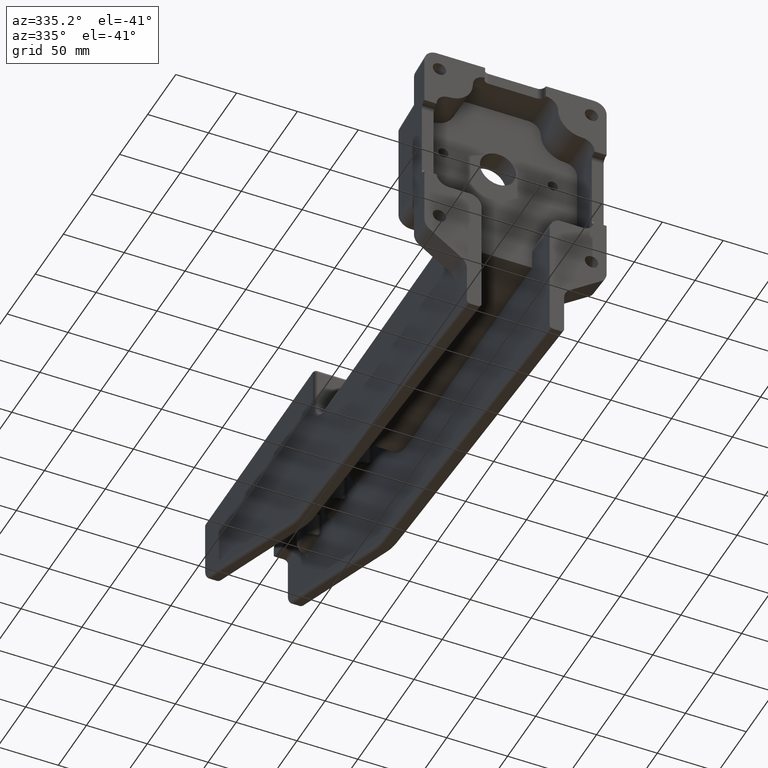
[diagram: clean part render]
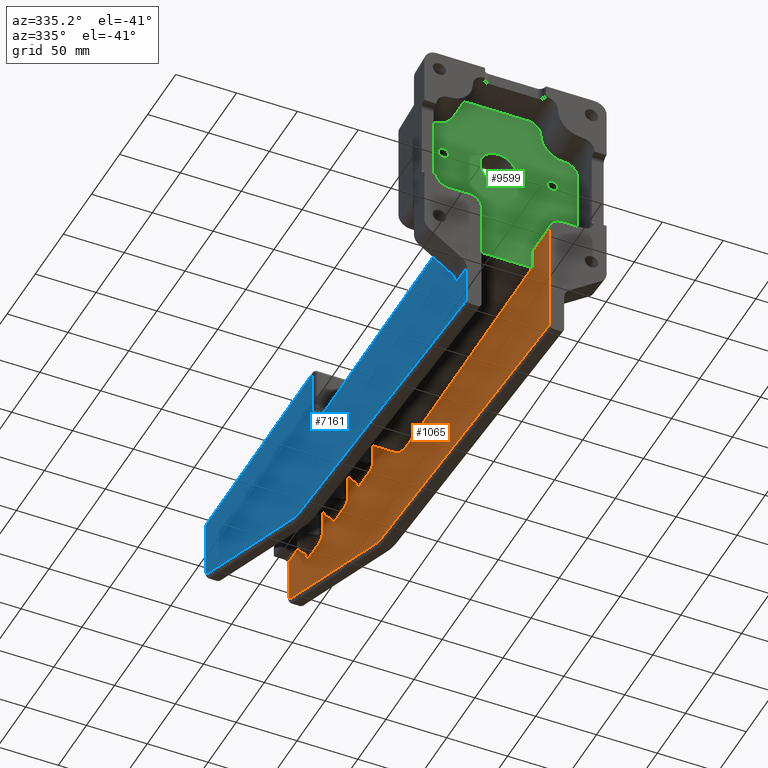
[diagram: same view with three faces highlighted in distinct colors, each labeled with its STEP entity id]
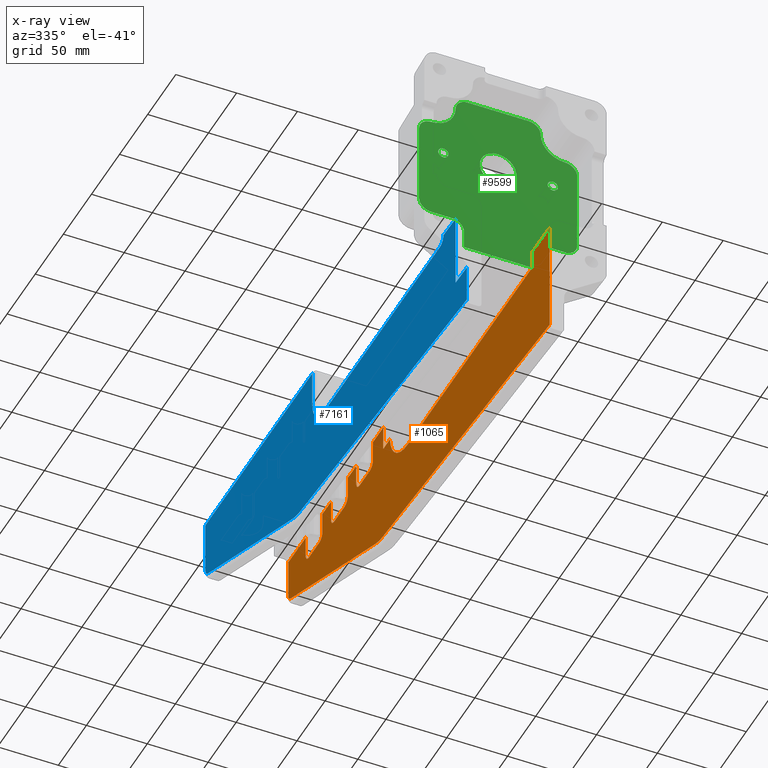
[diagram: x-ray of the same camera — body ghosted, the three highlighted faces saturated]
A machine part, auxiliary view with three faces highlighted in distinct colors.
The next image is the same camera in x-ray (body ghosted, the three faces saturated) — at least one of them is partly hidden behind the body in this view.
Their STEP definitions:

[orange] entity #1065 — the highlighted planar face has unit normal (1, -0, 0).
#9 = CARTESIAN_POINT ( 'NONE',  ( 28.00000000000000000, 407.5249758736495100, -123.1303834613186400 ) ) ;
#10 = CARTESIAN_POINT ( 'NONE',  ( 28.00000000000000000, 362.1339312526817500, -121.0000000000003300 ) ) ;
#19 = VERTEX_POINT ( 'NONE', #7629 ) ;
#58 = CARTESIAN_POINT ( 'NONE',  ( 27.99999999999999600, 436.5495418177793000, -122.9546759416864900 ) ) ;
#97 = CARTESIAN_POINT ( 'NONE',  ( 28.00000000000000700, 431.5669048386492400, -126.9624032809682200 ) ) ;
#181 = VECTOR ( 'NONE', #6090, 1000.000000000000000 ) ;
#210 = VECTOR ( 'NONE', #6205, 1000.000000000000000 ) ;
#361 = EDGE_CURVE ( 'NONE', #11051, #8357, #1987, .T. ) ;
#412 = CARTESIAN_POINT ( 'NONE',  ( 28.00000000000000400, 363.3888410190412500, -124.6774526948971800 ) ) ;
#467 = CARTESIAN_POINT ( 'NONE',  ( 27.99999999999999600, 345.6029637088292900, -124.6879051449751600 ) ) ;
#508 = DIRECTION ( 'NONE',  ( -0.0000000000000000000, 1.000000000000000000, 1.267645714563468100E-016 ) ) ;
#544 = LINE ( 'NONE', #1062, #210 ) ;
#616 = DIRECTION ( 'NONE',  ( -0.0000000000000000000, -1.000000000000000000, 0.0000000000000000000 ) ) ;
#644 = CARTESIAN_POINT ( 'NONE',  ( 28.00000000000000000, 362.1339312526817500, -254.6796809876007900 ) ) ;
#717 = CARTESIAN_POINT ( 'NONE',  ( 28.00000000000000000, 391.8660687473187100, -121.0000000000003300 ) ) ;
#722 = VERTEX_POINT ( 'NONE', #6212 ) ;
#752 = CARTESIAN_POINT ( 'NONE',  ( 28.00000000000000400, 322.4309083375914000, -126.9624486070113100 ) ) ;
#756 = CARTESIAN_POINT ( 'NONE',  ( 28.00000000000000400, 389.3039837575315100, -125.9019151088561200 ) ) ;
#764 = DIRECTION ( 'NONE',  ( -0.0000000000000000000, 1.000000000000000000, 1.267645714563468100E-016 ) ) ;
#766 = LINE ( 'NONE', #9374, #10064 ) ;
#799 = CARTESIAN_POINT ( 'NONE',  ( 27.99999999999999600, 317.3394414826761900, -122.5625958740601600 ) ) ;
#872 = ORIENTED_EDGE ( 'NONE', *, *, #936, .T. ) ;
#895 = EDGE_CURVE ( 'NONE', #11735, #9546, #3928, .T. ) ;
#936 = EDGE_CURVE ( 'NONE', #9244, #722, #10314, .T. ) ;
#1005 = CARTESIAN_POINT ( 'NONE',  ( 28.00000000000000400, 412.4309083375914000, -126.9624486070113100 ) ) ;
#1008 = VERTEX_POINT ( 'NONE', #4629 ) ;
#1050 = CARTESIAN_POINT ( 'NONE',  ( 27.99999999999999600, 407.3394414826760800, -122.5625958740601500 ) ) ;
#1062 = CARTESIAN_POINT ( 'NONE',  ( 28.00000000000000000, 2.999999999999891600, -254.6796809876006200 ) ) ;
#1065 = ADVANCED_FACE ( 'NONE', ( #11941 ), #1336, .F. ) ;
#1092 = CARTESIAN_POINT ( 'NONE',  ( 27.99999999999999600, 436.0490403141240600, -124.0351934641413900 ) ) ;
#1109 = VECTOR ( 'NONE', #8676, 1000.000000000000000 ) ;
#1140 = CARTESIAN_POINT ( 'NONE',  ( 28.00000000000000000, 430.7749643873923400, -127.0000000000003400 ) ) ;
#1271 = CARTESIAN_POINT ( 'NONE',  ( 28.00000000000000000, 313.8245421327282500, -206.5058954343522500 ) ) ;
#1336 = PLANE ( 'NONE',  #1828 ) ;
#1412 = ORIENTED_EDGE ( 'NONE', *, *, #3901, .T. ) ;
#1431 = LINE ( 'NONE', #11769, #1109 ) ;
#1445 = CARTESIAN_POINT ( 'NONE',  ( 28.00000000000000400, 362.7558233551270600, -123.6777179665031700 ) ) ;
#1474 = CARTESIAN_POINT ( 'NONE',  ( 28.00000000000000000, 407.1339312526816900, -254.6796809876007900 ) ) ;
#1500 = CARTESIAN_POINT ( 'NONE',  ( 28.00000000000000000, 344.9244947978711500, -125.4052512638314700 ) ) ;
#1577 = ORIENTED_EDGE ( 'NONE', *, *, #6207, .T. ) ;
#1586 = CARTESIAN_POINT ( 'NONE',  ( 28.00000000000000000, 362.1339312526817500, -103.0000000000003600 ) ) ;
#1687 = VECTOR ( 'NONE', #6343, 1000.000000000000000 ) ;
#1723 = VERTEX_POINT ( 'NONE', #9818 ) ;
#1745 = DIRECTION ( 'NONE',  ( 0.0000000000000000000, 0.0000000000000000000, 1.000000000000000000 ) ) ;
#1754 = VERTEX_POINT ( 'NONE', #2634 ) ;
#1780 = CARTESIAN_POINT ( 'NONE',  ( 27.99999999999999600, 321.2670021480045100, -126.6985865487692300 ) ) ;
#1784 = CARTESIAN_POINT ( 'NONE',  ( 28.00000000000000000, 295.2148058286123800, -163.3471452822536500 ) ) ;
#1785 = CARTESIAN_POINT ( 'NONE',  ( 28.00000000000000000, 388.4587794980754400, -126.4063189844957300 ) ) ;
#1827 = CARTESIAN_POINT ( 'NONE',  ( 28.00000000000000400, 317.1737683276953100, -121.7920262601177500 ) ) ;
#1828 = AXIS2_PLACEMENT_3D ( 'NONE', #5519, #12837, #6594 ) ;
#1987 = LINE ( 'NONE', #12337, #12775 ) ;
#2006 = VECTOR ( 'NONE', #8615, 1000.000000000000000 ) ;
#2035 = CARTESIAN_POINT ( 'NONE',  ( 28.00000000000000000, 430.7749643873923400, -127.0000000000003400 ) ) ;
#2037 = CARTESIAN_POINT ( 'NONE',  ( 27.99999999999999600, 411.2670021480043900, -126.6985865487692300 ) ) ;
#2047 = CARTESIAN_POINT ( 'NONE',  ( 28.00000000000000000, 461.0000000000005700, -135.4218985499278200 ) ) ;
#2083 = CARTESIAN_POINT ( 'NONE',  ( 28.00000000000000400, 407.1737683276952600, -121.7920262601177500 ) ) ;
#2088 = CARTESIAN_POINT ( 'NONE',  ( 28.00000000000000000, 436.8660687473187100, -121.0000000000003300 ) ) ;
#2113 = CIRCLE ( 'NONE', #3085, 6.999999999999340100 ) ;
#2129 = CARTESIAN_POINT ( 'NONE',  ( 27.99999999999999600, 435.3497443372186800, -124.9896554586480700 ) ) ;
#2155 = ORIENTED_EDGE ( 'NONE', *, *, #4265, .F. ) ;
#2223 = ORIENTED_EDGE ( 'NONE', *, *, #7642, .T. ) ;
#2324 = LINE ( 'NONE', #3379, #2006 ) ;
#2353 = CARTESIAN_POINT ( 'NONE',  ( 28.00000000000000000, 391.8660687473187100, -254.6796809876007900 ) ) ;
#2460 = ORIENTED_EDGE ( 'NONE', *, *, #5935, .T. ) ;
#2476 = CARTESIAN_POINT ( 'NONE',  ( 27.99999999999999600, 362.4564004489809600, -122.9420623813543900 ) ) ;
#2533 = CARTESIAN_POINT ( 'NONE',  ( 28.00000000000000400, 344.4641342646913200, -125.7863050611544800 ) ) ;
#2596 = ORIENTED_EDGE ( 'NONE', *, *, #9905, .T. ) ;
#2634 = CARTESIAN_POINT ( 'NONE',  ( 28.00000000000000000, 346.8660687473187100, -121.0000000000003300 ) ) ;
#2660 = VERTEX_POINT ( 'NONE', #4123 ) ;
#2718 = VECTOR ( 'NONE', #11503, 1000.000000000000000 ) ;
#2739 = LINE ( 'NONE', #4973, #13505 ) ;
#2743 = EDGE_CURVE ( 'NONE', #4345, #9685, #9784, .T. ) ;
#2775 = CARTESIAN_POINT ( 'NONE',  ( 28.00000000000000000, 391.6666574662322100, -122.5781505402899100 ) ) ;
#2787 = ORIENTED_EDGE ( 'NONE', *, *, #4327, .T. ) ;
#2816 = CARTESIAN_POINT ( 'NONE',  ( 27.99999999999999600, 320.1843046365270300, -126.2204954146788400 ) ) ;
#2818 = DIRECTION ( 'NONE',  ( 0.0000000000000000000, 3.543264972207947300E-015, -1.000000000000000000 ) ) ;
#2820 = CARTESIAN_POINT ( 'NONE',  ( 28.00000000000001100, 387.3382657998403100, -126.8145121143177400 ) ) ;
#2822 = ORIENTED_EDGE ( 'NONE', *, *, #12308, .T. ) ;
#2863 = CARTESIAN_POINT ( 'NONE',  ( 28.00000000000000000, 317.1339312526817500, -121.0000000000003300 ) ) ;
#3026 = AXIS2_PLACEMENT_3D ( 'NONE', #9696, #3421, #10728 ) ;
#3076 = CARTESIAN_POINT ( 'NONE',  ( 27.99999999999999600, 410.1843046365269200, -126.2204954146788400 ) ) ;
#3085 = AXIS2_PLACEMENT_3D ( 'NONE', #2047, #9365, #3089 ) ;
#3089 = DIRECTION ( 'NONE',  ( 0.0000000000000000000, 0.0000000000000000000, -1.000000000000000000 ) ) ;
#3127 = CARTESIAN_POINT ( 'NONE',  ( 28.00000000000000000, 407.1339312526816900, -121.0000000000003300 ) ) ;
#3178 = CARTESIAN_POINT ( 'NONE',  ( 28.00000000000000400, 434.7742418043503100, -125.5381967042411900 ) ) ;
#3278 = VECTOR ( 'NONE', #7745, 1000.000000000000000 ) ;
#3379 = CARTESIAN_POINT ( 'NONE',  ( 28.00000000000000000, 467.9999999999999400, -135.4218985499279600 ) ) ;
#3421 = DIRECTION ( 'NONE',  ( 1.000000000000000000, -0.0000000000000000000, 0.0000000000000000000 ) ) ;
#3489 = CARTESIAN_POINT ( 'NONE',  ( 28.00000000000000400, 366.6498217910640800, -126.8117551148432200 ) ) ;
#3503 = ORIENTED_EDGE ( 'NONE', *, *, #361, .T. ) ;
#3530 = ORIENTED_EDGE ( 'NONE', *, *, #2743, .T. ) ;
#3536 = CARTESIAN_POINT ( 'NONE',  ( 27.99999999999999600, 362.2908082401332300, -122.3711837116218700 ) ) ;
#3546 = CARTESIAN_POINT ( 'NONE',  ( 28.00000000000000000, 463.7716628538044000, -141.8497975087505600 ) ) ;
#3553 = CARTESIAN_POINT ( 'NONE',  ( 28.00000000000000000, 470.9999999999999400, -103.0000000000003400 ) ) ;
#3588 = CARTESIAN_POINT ( 'NONE',  ( 28.00000000000000700, 343.8086695552737000, -126.2241211813562500 ) ) ;
#3686 = VERTEX_POINT ( 'NONE', #10 ) ;
#3721 = CARTESIAN_POINT ( 'NONE',  ( 28.00000000000000000, 286.9374388453425100, -124.0000000000003300 ) ) ;
#3825 = CARTESIAN_POINT ( 'NONE',  ( 28.00000000000000700, 391.2421331540908200, -123.6815764115977000 ) ) ;
#3868 = CARTESIAN_POINT ( 'NONE',  ( 27.99999999999999600, 319.2102394850787200, -125.5375766358969800 ) ) ;
#3874 = CARTESIAN_POINT ( 'NONE',  ( 28.00000000000000000, 386.1744421391134700, -127.0000000000002800 ) ) ;
#3888 = EDGE_LOOP ( 'NONE', ( #4966, #10885, #5235, #8736, #9294, #5272, #2596, #2787, #3503, #5039, #872, #7046, #1412, #4299, #2223, #2155, #2822, #11404, #7439, #10287, #2460, #5614, #4400, #5748, #11942, #3530, #12501, #1577, #12615, #13268, #5503 ) ) ;
#3893 = VECTOR ( 'NONE', #9682, 1000.000000000000000 ) ;
#3901 = EDGE_CURVE ( 'NONE', #1754, #11344, #8994, .T. ) ;
#3928 = CIRCLE ( 'NONE', #3026, 32.00000000000000000 ) ;
#4088 = VERTEX_POINT ( 'NONE', #2035 ) ;
#4114 = CARTESIAN_POINT ( 'NONE',  ( 27.99999999999999600, 409.2102394850785500, -125.5375766358969800 ) ) ;
#4123 = CARTESIAN_POINT ( 'NONE',  ( 28.00000000000000000, 299.0990340419334100, -210.1863678546538100 ) ) ;
#4205 = CARTESIAN_POINT ( 'NONE',  ( 28.00000000000000400, 434.3039837575314600, -125.9019151088560900 ) ) ;
#4265 = EDGE_CURVE ( 'NONE', #9681, #3686, #6107, .T. ) ;
#4299 = ORIENTED_EDGE ( 'NONE', *, *, #10238, .T. ) ;
#4327 = EDGE_CURVE ( 'NONE', #10646, #11051, #10085, .T. ) ;
#4345 = VERTEX_POINT ( 'NONE', #12984 ) ;
#4380 = VERTEX_POINT ( 'NONE', #6845 ) ;
#4400 = ORIENTED_EDGE ( 'NONE', *, *, #7013, .T. ) ;
#4524 = CARTESIAN_POINT ( 'NONE',  ( 28.00000000000000700, 365.5365937178816600, -126.4037375684128600 ) ) ;
#4529 = CARTESIAN_POINT ( 'NONE',  ( 28.00000000000000000, 391.8660687473187100, -103.0000000000003600 ) ) ;
#4571 = VECTOR ( 'NONE', #11733, 1000.000000000000000 ) ;
#4572 = CARTESIAN_POINT ( 'NONE',  ( 28.00000000000000000, 362.1339312526817500, -121.3994094931030800 ) ) ;
#4583 = CARTESIAN_POINT ( 'NONE',  ( 28.00000000000000400, 346.8256709913962400, -121.7982202547254800 ) ) ;
#4590 = LINE ( 'NONE', #5408, #12612 ) ;
#4610 = CARTESIAN_POINT ( 'NONE',  ( 28.00000000000000000, 320.0417392568988900, -103.0000000000003700 ) ) ;
#4620 = CARTESIAN_POINT ( 'NONE',  ( 28.00000000000000400, 342.7185438296939400, -126.7036889691854600 ) ) ;
#4629 = CARTESIAN_POINT ( 'NONE',  ( 28.00000000000000000, 34.00000000000001400, -138.9999999999999400 ) ) ;
#4684 = CARTESIAN_POINT ( 'NONE',  ( 28.00000000000000000, 254.9999999999998900, -154.0000000000001100 ) ) ;
#4867 = CARTESIAN_POINT ( 'NONE',  ( 28.00000000000000400, 390.6029637088292900, -124.6879051449751800 ) ) ;
#4874 = EDGE_CURVE ( 'NONE', #11735, #7198, #766, .T. ) ;
#4903 = CARTESIAN_POINT ( 'NONE',  ( 28.00000000000000400, 318.3888410190412500, -124.6774526948971800 ) ) ;
#4960 = LINE ( 'NONE', #5193, #7800 ) ;
#4961 = CARTESIAN_POINT ( 'NONE',  ( 28.00000000000000000, 298.9582607431016800, -124.0000000000003300 ) ) ;
#4966 = ORIENTED_EDGE ( 'NONE', *, *, #8457, .F. ) ;
#4973 = CARTESIAN_POINT ( 'NONE',  ( 28.00000000000000000, 436.8660687473187100, -254.6796809876007900 ) ) ;
#5039 = ORIENTED_EDGE ( 'NONE', *, *, #11986, .F. ) ;
#5112 = CARTESIAN_POINT ( 'NONE',  ( 28.00000000000000000, 413.2250356126081100, -127.0000000000003400 ) ) ;
#5121 = B_SPLINE_CURVE_WITH_KNOTS ( 'NONE', 3,
 ( #717, #6952, #9068, #2775, #10098, #3825, #11151, #4867, #12189, #5929, #13221, #6999, #756, #8062, #1785, #9112, #2820, #10143, #3874, #11193 ),
 .UNSPECIFIED., .F., .F.,
 ( 4, 2, 2, 2, 2, 2, 2, 2, 2, 4 ),
 ( 0.0000000000000000000, 0.001194696799874165000, 0.002389393599748330100, 0.003584090399622495500, 0.004778787199496660100, 0.005376135599433774100, 0.005973483999370886300, 0.007168180799245207900, 0.008362877599119531200, 0.009557574398993852800 ),
 .UNSPECIFIED. ) ;
#5156 = CARTESIAN_POINT ( 'NONE',  ( 28.00000000000000400, 408.3888410190411900, -124.6774526948971800 ) ) ;
#5193 = CARTESIAN_POINT ( 'NONE',  ( 28.00000000000000000, 298.9582607431016800, -124.0000000000003300 ) ) ;
#5213 = CARTESIAN_POINT ( 'NONE',  ( 28.00000000000000000, 313.8245421327282000, -206.5058954343522800 ) ) ;
#5235 = ORIENTED_EDGE ( 'NONE', *, *, #12137, .T. ) ;
#5259 = CARTESIAN_POINT ( 'NONE',  ( 28.00000000000000000, 505.9537289224925900, -138.9999999999998900 ) ) ;
#5260 = CARTESIAN_POINT ( 'NONE',  ( 28.00000000000000000, 433.4587794980755600, -126.4063189844957300 ) ) ;
#5272 = ORIENTED_EDGE ( 'NONE', *, *, #11821, .F. ) ;
#5405 = CARTESIAN_POINT ( 'NONE',  ( 28.00000000000000000, 2.999999999999947200, -234.7409218971556600 ) ) ;
#5408 = CARTESIAN_POINT ( 'NONE',  ( 28.00000000000000000, 410.0417392568987800, -103.0000000000003600 ) ) ;
#5495 = LINE ( 'NONE', #5213, #2718 ) ;
#5503 = ORIENTED_EDGE ( 'NONE', *, *, #12394, .T. ) ;
#5519 = CARTESIAN_POINT ( 'NONE',  ( 28.00000000000000000, 505.9537289224925900, -254.6796809876007900 ) ) ;
#5582 = CARTESIAN_POINT ( 'NONE',  ( 28.00000000000000400, 364.5174458131567700, -125.7847794970688100 ) ) ;
#5614 = ORIENTED_EDGE ( 'NONE', *, *, #6838, .F. ) ;
#5616 = VECTOR ( 'NONE', #616, 1000.000000000000000 ) ;
#5637 = CARTESIAN_POINT ( 'NONE',  ( 27.99999999999999600, 346.5495418177793600, -122.9546759416864900 ) ) ;
#5685 = CARTESIAN_POINT ( 'NONE',  ( 28.00000000000000700, 341.5669048386492400, -126.9624032809682200 ) ) ;
#5727 = DIRECTION ( 'NONE',  ( -0.0000000000000000000, -0.0000000000000000000, -1.000000000000000000 ) ) ;
#5748 = ORIENTED_EDGE ( 'NONE', *, *, #9397, .F. ) ;
#5809 = EDGE_CURVE ( 'NONE', #19, #1008, #9687, .T. ) ;
#5853 = EDGE_CURVE ( 'NONE', #13022, #12509, #4590, .T. ) ;
#5926 = CARTESIAN_POINT ( 'NONE',  ( 28.00000000000000000, 323.2250356126081100, -127.0000000000003400 ) ) ;
#5929 = CARTESIAN_POINT ( 'NONE',  ( 28.00000000000000700, 389.9244947978710900, -125.4052512638314700 ) ) ;
#5935 = EDGE_CURVE ( 'NONE', #12509, #10251, #8871, .T. ) ;
#5970 = CARTESIAN_POINT ( 'NONE',  ( 28.00000000000000000, 317.7558233551270600, -123.6777179665031400 ) ) ;
#6056 = DIRECTION ( 'NONE',  ( 0.0000000000000000000, 0.0000000000000000000, 1.000000000000000000 ) ) ;
#6071 = EDGE_CURVE ( 'NONE', #7422, #2660, #9487, .T. ) ;
#6090 = DIRECTION ( 'NONE',  ( 0.0000000000000000000, 1.000000000000000000, -0.0000000000000000000 ) ) ;
#6107 = B_SPLINE_CURVE_WITH_KNOTS ( 'NONE', 3,
 ( #7671, #6606, #9753, #3489, #10799, #4524, #11856, #5582, #12893, #6650, #412, #7718, #1445, #8760, #2476, #9802, #3536, #10841, #4572, #11906 ),
 .UNSPECIFIED., .F., .F.,
 ( 4, 2, 2, 2, 2, 2, 2, 2, 2, 4 ),
 ( 0.0000000000000000000, 0.001189806061302153700, 0.002379612122604307500, 0.003569418183906461700, 0.004759224245208615000, 0.005949030306510768300, 0.007138836367812923300, 0.007733739398464051600, 0.008328642429115179800, 0.009518448490417361800 ),
 .UNSPECIFIED. ) ;
#6109 = LINE ( 'NONE', #7007, #11675 ) ;
#6205 = DIRECTION ( 'NONE',  ( 0.0000000000000000000, -2.775557561562851900E-016, -1.000000000000000000 ) ) ;
#6207 = EDGE_CURVE ( 'NONE', #4380, #6554, #2113, .T. ) ;
#6212 = CARTESIAN_POINT ( 'NONE',  ( 28.00000000000000000, 340.7749643873923400, -127.0000000000003400 ) ) ;
#6245 = CARTESIAN_POINT ( 'NONE',  ( 28.00000000000000000, 407.7558233551270100, -123.6777179665031700 ) ) ;
#6295 = CARTESIAN_POINT ( 'NONE',  ( 28.00000000000000000, 436.6666574662321000, -122.5781505402899500 ) ) ;
#6343 = DIRECTION ( 'NONE',  ( -0.0000000000000000000, 1.000000000000000000, 1.176083712526650200E-016 ) ) ;
#6346 = CARTESIAN_POINT ( 'NONE',  ( 28.00000000000000000, 432.3382657998401400, -126.8145121143177100 ) ) ;
#6383 = EDGE_CURVE ( 'NONE', #1723, #13022, #6695, .T. ) ;
#6543 = EDGE_CURVE ( 'NONE', #1754, #722, #10326, .T. ) ;
#6554 = VERTEX_POINT ( 'NONE', #3546 ) ;
#6594 = DIRECTION ( 'NONE',  ( 0.0000000000000000000, 0.0000000000000000000, -1.000000000000000000 ) ) ;
#6606 = CARTESIAN_POINT ( 'NONE',  ( 28.00000000000000000, 367.8258078932773300, -127.0000000000003400 ) ) ;
#6650 = CARTESIAN_POINT ( 'NONE',  ( 28.00000000000000400, 363.6470446425841500, -124.9858556960199000 ) ) ;
#6695 = LINE ( 'NONE', #2353, #3893 ) ;
#6700 = VERTEX_POINT ( 'NONE', #10046 ) ;
#6709 = CARTESIAN_POINT ( 'NONE',  ( 27.99999999999999600, 346.0490403141241100, -124.0351934641413900 ) ) ;
#6759 = CARTESIAN_POINT ( 'NONE',  ( 28.00000000000000000, 340.7749643873923400, -127.0000000000003400 ) ) ;
#6765 = CARTESIAN_POINT ( 'NONE',  ( 28.00000000000000000, 298.9582607431016800, -103.0000000000003700 ) ) ;
#6788 = EDGE_CURVE ( 'NONE', #10201, #4345, #2739, .T. ) ;
#6838 = EDGE_CURVE ( 'NONE', #6700, #10251, #12416, .T. ) ;
#6845 = CARTESIAN_POINT ( 'NONE',  ( 28.00000000000000000, 467.9999999999999400, -135.4218985499280200 ) ) ;
#6876 = CARTESIAN_POINT ( 'NONE',  ( 28.00000000000000000, 436.8660687473187100, -121.0000000000003300 ) ) ;
#6952 = CARTESIAN_POINT ( 'NONE',  ( 28.00000000000000000, 391.8660687473187600, -121.3997325164591700 ) ) ;
#6971 = CARTESIAN_POINT ( 'NONE',  ( 28.00000000000000000, 34.00000000000001400, -154.0000000000001100 ) ) ;
#6999 = CARTESIAN_POINT ( 'NONE',  ( 28.00000000000000400, 389.4641342646911500, -125.7863050611544800 ) ) ;
#7007 = CARTESIAN_POINT ( 'NONE',  ( 28.00000000000000000, 365.0417392568988900, -103.0000000000003600 ) ) ;
#7009 = VECTOR ( 'NONE', #10858, 1000.000000000000000 ) ;
#7013 = EDGE_CURVE ( 'NONE', #6700, #4088, #1431, .T. ) ;
#7041 = CARTESIAN_POINT ( 'NONE',  ( 28.00000000000000400, 317.4564004489810700, -122.9420623813544200 ) ) ;
#7046 = ORIENTED_EDGE ( 'NONE', *, *, #6543, .F. ) ;
#7114 = CARTESIAN_POINT ( 'NONE',  ( 28.00000000000000000, 388.9582607431016200, -127.0000000000003400 ) ) ;
#7198 = VERTEX_POINT ( 'NONE', #6971 ) ;
#7305 = CARTESIAN_POINT ( 'NONE',  ( 28.00000000000000400, 407.4564004489810700, -122.9420623813543900 ) ) ;
#7356 = CARTESIAN_POINT ( 'NONE',  ( 28.00000000000000000, 436.2421331540906000, -123.6815764115976600 ) ) ;
#7373 = VERTEX_POINT ( 'NONE', #5405 ) ;
#7404 = CARTESIAN_POINT ( 'NONE',  ( 28.00000000000000400, 431.1744421391135800, -127.0000000000003100 ) ) ;
#7422 = VERTEX_POINT ( 'NONE', #1271 ) ;
#7439 = ORIENTED_EDGE ( 'NONE', *, *, #6383, .T. ) ;
#7629 = CARTESIAN_POINT ( 'NONE',  ( 28.00000000000000000, 2.999999999999923600, -138.9999999999999400 ) ) ;
#7642 = EDGE_CURVE ( 'NONE', #11192, #3686, #10679, .T. ) ;
#7671 = CARTESIAN_POINT ( 'NONE',  ( 28.00000000000000000, 368.2250356126081100, -127.0000000000003400 ) ) ;
#7718 = CARTESIAN_POINT ( 'NONE',  ( 28.00000000000000000, 362.9440968115519600, -124.0235594965810700 ) ) ;
#7745 = DIRECTION ( 'NONE',  ( -0.0000000000000000000, -0.0000000000000000000, -1.000000000000000000 ) ) ;
#7772 = CARTESIAN_POINT ( 'NONE',  ( 27.99999999999999600, 345.3497443372187400, -124.9896554586480700 ) ) ;
#7786 = CARTESIAN_POINT ( 'NONE',  ( 28.00000000000000000, -0.2479294604249560100, -235.0102623889957600 ) ) ;
#7800 = VECTOR ( 'NONE', #11489, 1000.000000000000000 ) ;
#7921 = CARTESIAN_POINT ( 'NONE',  ( 28.00000000000000000, 505.9537289224925900, -124.0000000000003300 ) ) ;
#8054 = CARTESIAN_POINT ( 'NONE',  ( 28.00000000000000000, 323.2250356126081100, -127.0000000000003400 ) ) ;
#8057 = CARTESIAN_POINT ( 'NONE',  ( 28.00000000000000000, 321.6498217910640800, -126.8117551148432200 ) ) ;
#8062 = CARTESIAN_POINT ( 'NONE',  ( 27.99999999999999300, 388.8086695552734100, -126.2241211813562000 ) ) ;
#8091 = CARTESIAN_POINT ( 'NONE',  ( 28.00000000000000000, 317.2908082401332300, -122.3711837116218800 ) ) ;
#8151 = EDGE_CURVE ( 'NONE', #9685, #4380, #2324, .T. ) ;
#8309 = CARTESIAN_POINT ( 'NONE',  ( 28.00000000000000400, 411.6498217910642000, -126.8117551148432200 ) ) ;
#8310 = EDGE_CURVE ( 'NONE', #1723, #8438, #5121, .T. ) ;
#8320 = B_SPLINE_CURVE_WITH_KNOTS ( 'NONE', 3,
 ( #2088, #10439, #12545, #6295, #58, #7356, #1092, #8407, #2129, #9442, #3178, #10480, #4205, #11545, #5260, #12590, #6346, #97, #7404, #1140 ),
 .UNSPECIFIED., .F., .F.,
 ( 4, 2, 2, 2, 2, 2, 2, 2, 2, 4 ),
 ( 0.0000000000000000000, 0.001194696799874330700, 0.002389393599748661400, 0.003584090399622992100, 0.004778787199497322800, 0.005376135599434458400, 0.005973483999371594100, 0.007168180799245678900, 0.008362877599119763700, 0.009557574398993847600 ),
 .UNSPECIFIED. ) ;
#8356 = CARTESIAN_POINT ( 'NONE',  ( 28.00000000000000000, 407.2908082401331200, -122.3711837116219000 ) ) ;
#8357 = VERTEX_POINT ( 'NONE', #10229 ) ;
#8407 = CARTESIAN_POINT ( 'NONE',  ( 27.99999999999999600, 435.6029637088292400, -124.6879051449751600 ) ) ;
#8438 = VERTEX_POINT ( 'NONE', #10364 ) ;
#8457 = EDGE_CURVE ( 'NONE', #19, #7373, #544, .T. ) ;
#8510 = LINE ( 'NONE', #7114, #181 ) ;
#8615 = DIRECTION ( 'NONE',  ( 0.0000000000000000000, 0.0000000000000000000, -1.000000000000000000 ) ) ;
#8644 = CARTESIAN_POINT ( 'NONE',  ( 28.00000000000000000, 34.00000000000001400, -154.0000000000001100 ) ) ;
#8670 = LINE ( 'NONE', #7786, #11107 ) ;
#8676 = DIRECTION ( 'NONE',  ( 0.0000000000000000000, 1.000000000000000000, -0.0000000000000000000 ) ) ;
#8704 = DIRECTION ( 'NONE',  ( 0.0000000000000000000, 1.000000000000000000, -0.0000000000000000000 ) ) ;
#8736 = ORIENTED_EDGE ( 'NONE', *, *, #4874, .F. ) ;
#8760 = CARTESIAN_POINT ( 'NONE',  ( 28.00000000000000000, 362.5249758736495100, -123.1303834613186300 ) ) ;
#8773 = CARTESIAN_POINT ( 'NONE',  ( 28.00000000000000000, 346.8660687473187100, -121.0000000000003300 ) ) ;
#8820 = CARTESIAN_POINT ( 'NONE',  ( 28.00000000000000400, 344.7742418043504200, -125.5381967042411900 ) ) ;
#8834 = DIRECTION ( 'NONE',  ( 0.0000000000000000000, -0.9965792036680887200, -0.08264315347491474300 ) ) ;
#8871 = LINE ( 'NONE', #1474, #3278 ) ;
#8994 = LINE ( 'NONE', #9070, #11754 ) ;
#9035 = CARTESIAN_POINT ( 'NONE',  ( 28.00000000000000000, 407.1339312526816900, -121.0000000000003300 ) ) ;
#9068 = CARTESIAN_POINT ( 'NONE',  ( 28.00000000000000400, 391.8256709913961800, -121.7982202547254800 ) ) ;
#9070 = CARTESIAN_POINT ( 'NONE',  ( 28.00000000000000000, 346.8660687473187100, -254.6796809876007900 ) ) ;
#9109 = CARTESIAN_POINT ( 'NONE',  ( 27.99999999999999600, 320.5365937178816000, -126.4037375684128100 ) ) ;
#9111 = DIRECTION ( 'NONE',  ( -1.000000000000000000, 0.0000000000000000000, -0.0000000000000000000 ) ) ;
#9112 = CARTESIAN_POINT ( 'NONE',  ( 28.00000000000000000, 387.7185438296940000, -126.7036889691854600 ) ) ;
#9152 = CARTESIAN_POINT ( 'NONE',  ( 28.00000000000000000, 317.1339312526816900, -121.3994094931030600 ) ) ;
#9244 = VERTEX_POINT ( 'NONE', #8054 ) ;
#9294 = ORIENTED_EDGE ( 'NONE', *, *, #895, .T. ) ;
#9356 = CARTESIAN_POINT ( 'NONE',  ( 28.00000000000000400, 410.5365937178816000, -126.4037375684128600 ) ) ;
#9365 = DIRECTION ( 'NONE',  ( -1.000000000000000000, 0.0000000000000000000, -0.0000000000000000000 ) ) ;
#9374 = CARTESIAN_POINT ( 'NONE',  ( 28.00000000000000000, 286.9999999999998900, -154.0000000000001100 ) ) ;
#9391 = CARTESIAN_POINT ( 'NONE',  ( 28.00000000000000400, 407.1339312526817500, -121.3994094931030900 ) ) ;
#9397 = EDGE_CURVE ( 'NONE', #10201, #4088, #8320, .T. ) ;
#9402 = EDGE_CURVE ( 'NONE', #6554, #7422, #5495, .T. ) ;
#9442 = CARTESIAN_POINT ( 'NONE',  ( 28.00000000000000000, 434.9244947978711500, -125.4052512638314700 ) ) ;
#9487 = CIRCLE ( 'NONE', #13394, 46.99999999999998600 ) ;
#9546 = VERTEX_POINT ( 'NONE', #3721 ) ;
#9650 = VERTEX_POINT ( 'NONE', #4961 ) ;
#9681 = VERTEX_POINT ( 'NONE', #11266 ) ;
#9682 = DIRECTION ( 'NONE',  ( 0.0000000000000000000, 0.0000000000000000000, 1.000000000000000000 ) ) ;
#9685 = VERTEX_POINT ( 'NONE', #12304 ) ;
#9687 = LINE ( 'NONE', #5259, #1687 ) ;
#9696 = CARTESIAN_POINT ( 'NONE',  ( 28.00000000000000000, 254.9999999999998900, -122.0000000000001100 ) ) ;
#9753 = CARTESIAN_POINT ( 'NONE',  ( 28.00000000000000400, 367.4309083375914600, -126.9624486070113100 ) ) ;
#9784 = LINE ( 'NONE', #3553, #7009 ) ;
#9802 = CARTESIAN_POINT ( 'NONE',  ( 28.00000000000000000, 362.3394414826761400, -122.5625958740601800 ) ) ;
#9812 = CARTESIAN_POINT ( 'NONE',  ( 27.99999999999999600, 346.8660687473187100, -121.3997325164591700 ) ) ;
#9818 = CARTESIAN_POINT ( 'NONE',  ( 28.00000000000000000, 391.8660687473187100, -121.0000000000003300 ) ) ;
#9857 = CARTESIAN_POINT ( 'NONE',  ( 28.00000000000000400, 344.3039837575315100, -125.9019151088560900 ) ) ;
#9905 = EDGE_CURVE ( 'NONE', #9650, #10646, #4960, .T. ) ;
#10046 = CARTESIAN_POINT ( 'NONE',  ( 28.00000000000000000, 413.2250356126081100, -127.0000000000003400 ) ) ;
#10064 = VECTOR ( 'NONE', #11426, 1000.000000000000000 ) ;
#10085 = LINE ( 'NONE', #4610, #12526 ) ;
#10098 = CARTESIAN_POINT ( 'NONE',  ( 28.00000000000000400, 391.5495418177794100, -122.9546759416865200 ) ) ;
#10139 = CARTESIAN_POINT ( 'NONE',  ( 27.99999999999999600, 319.5174458131567700, -125.7847794970687800 ) ) ;
#10143 = CARTESIAN_POINT ( 'NONE',  ( 27.99999999999999600, 386.5669048386490100, -126.9624032809682200 ) ) ;
#10195 = CARTESIAN_POINT ( 'NONE',  ( 28.00000000000000000, 346.8660687473187100, -103.0000000000003600 ) ) ;
#10201 = VERTEX_POINT ( 'NONE', #6876 ) ;
#10229 = CARTESIAN_POINT ( 'NONE',  ( 28.00000000000000000, 317.1339312526817500, -121.0000000000003300 ) ) ;
#10238 = EDGE_CURVE ( 'NONE', #11344, #11192, #6109, .T. ) ;
#10251 = VERTEX_POINT ( 'NONE', #9035 ) ;
#10287 = ORIENTED_EDGE ( 'NONE', *, *, #5853, .T. ) ;
#10314 = LINE ( 'NONE', #10723, #13079 ) ;
#10326 = B_SPLINE_CURVE_WITH_KNOTS ( 'NONE', 3,
 ( #8773, #9812, #4583, #11915, #5637, #12946, #6709, #467, #7772, #1500, #8820, #2533, #9857, #3588, #10895, #4620, #11961, #5685, #12994, #6759 ),
 .UNSPECIFIED., .F., .F.,
 ( 4, 2, 2, 2, 2, 2, 2, 2, 2, 4 ),
 ( 0.0000000000000000000, 0.001194696799874331300, 0.002389393599748662700, 0.003584090399622993800, 0.004778787199497325400, 0.005376135599434461000, 0.005973483999371597500, 0.007168180799245682300, 0.008362877599119767100, 0.009557574398993852800 ),
 .UNSPECIFIED. ) ;
#10364 = CARTESIAN_POINT ( 'NONE',  ( 28.00000000000000000, 385.7749643873923400, -127.0000000000003400 ) ) ;
#10391 = CARTESIAN_POINT ( 'NONE',  ( 28.00000000000000400, 409.5174458131567700, -125.7847794970687800 ) ) ;
#10439 = CARTESIAN_POINT ( 'NONE',  ( 27.99999999999999600, 436.8660687473187100, -121.3997325164591700 ) ) ;
#10480 = CARTESIAN_POINT ( 'NONE',  ( 28.00000000000000400, 434.4641342646912700, -125.7863050611544800 ) ) ;
#10646 = VERTEX_POINT ( 'NONE', #6765 ) ;
#10679 = LINE ( 'NONE', #644, #13131 ) ;
#10706 = CARTESIAN_POINT ( 'NONE',  ( 28.00000000000000000, 317.1339312526817500, -103.0000000000003700 ) ) ;
#10723 = CARTESIAN_POINT ( 'NONE',  ( 28.00000000000000000, 343.9582607431016800, -127.0000000000003400 ) ) ;
#10728 = DIRECTION ( 'NONE',  ( 0.0000000000000000000, 0.0000000000000000000, -1.000000000000000000 ) ) ;
#10799 = CARTESIAN_POINT ( 'NONE',  ( 28.00000000000000000, 366.2670021480045600, -126.6985865487692600 ) ) ;
#10841 = CARTESIAN_POINT ( 'NONE',  ( 28.00000000000000700, 362.1737683276952600, -121.7920262601177500 ) ) ;
#10858 = DIRECTION ( 'NONE',  ( -0.0000000000000000000, 1.000000000000000000, 1.267645714563468100E-016 ) ) ;
#10885 = ORIENTED_EDGE ( 'NONE', *, *, #5809, .T. ) ;
#10895 = CARTESIAN_POINT ( 'NONE',  ( 28.00000000000000000, 343.4587794980756700, -126.4063189844957300 ) ) ;
#11051 = VERTEX_POINT ( 'NONE', #10706 ) ;
#11107 = VECTOR ( 'NONE', #8834, 999.9999999999998900 ) ;
#11151 = CARTESIAN_POINT ( 'NONE',  ( 28.00000000000000000, 391.0490403141241100, -124.0351934641414100 ) ) ;
#11188 = CARTESIAN_POINT ( 'NONE',  ( 27.99999999999999300, 318.6470446425840900, -124.9858556960198300 ) ) ;
#11192 = VERTEX_POINT ( 'NONE', #1586 ) ;
#11193 = CARTESIAN_POINT ( 'NONE',  ( 28.00000000000000000, 385.7749643873923400, -127.0000000000003400 ) ) ;
#11266 = CARTESIAN_POINT ( 'NONE',  ( 28.00000000000000000, 368.2250356126081100, -127.0000000000003400 ) ) ;
#11344 = VERTEX_POINT ( 'NONE', #10195 ) ;
#11404 = ORIENTED_EDGE ( 'NONE', *, *, #8310, .F. ) ;
#11409 = CARTESIAN_POINT ( 'NONE',  ( 28.00000000000000400, 412.8258078932772700, -127.0000000000003700 ) ) ;
#11426 = DIRECTION ( 'NONE',  ( 0.0000000000000000000, -1.000000000000000000, 0.0000000000000000000 ) ) ;
#11451 = CARTESIAN_POINT ( 'NONE',  ( 28.00000000000000000, 408.6470446425840900, -124.9858556960198700 ) ) ;
#11489 = DIRECTION ( 'NONE',  ( 0.0000000000000000000, 0.0000000000000000000, 1.000000000000000000 ) ) ;
#11503 = DIRECTION ( 'NONE',  ( 0.0000000000000000000, -0.9182712798318848300, -0.3959518362577854600 ) ) ;
#11517 = LINE ( 'NONE', #7921, #5616 ) ;
#11545 = CARTESIAN_POINT ( 'NONE',  ( 28.00000000000000700, 433.8086695552735800, -126.2241211813562500 ) ) ;
#11675 = VECTOR ( 'NONE', #764, 1000.000000000000000 ) ;
#11733 = DIRECTION ( 'NONE',  ( -0.0000000000000000000, 1.176083712526650200E-016, -1.000000000000000000 ) ) ;
#11735 = VERTEX_POINT ( 'NONE', #4684 ) ;
#11754 = VECTOR ( 'NONE', #1745, 1000.000000000000000 ) ;
#11769 = CARTESIAN_POINT ( 'NONE',  ( 28.00000000000000000, 433.9582607431016200, -127.0000000000003400 ) ) ;
#11821 = EDGE_CURVE ( 'NONE', #9650, #9546, #11517, .T. ) ;
#11856 = CARTESIAN_POINT ( 'NONE',  ( 28.00000000000000000, 365.1843046365270300, -126.2204954146788700 ) ) ;
#11906 = CARTESIAN_POINT ( 'NONE',  ( 28.00000000000000000, 362.1339312526817500, -121.0000000000003300 ) ) ;
#11915 = CARTESIAN_POINT ( 'NONE',  ( 28.00000000000000000, 346.6666574662322100, -122.5781505402899500 ) ) ;
#11941 = FACE_OUTER_BOUND ( 'NONE', #3888, .T. ) ;
#11942 = ORIENTED_EDGE ( 'NONE', *, *, #6788, .T. ) ;
#11961 = CARTESIAN_POINT ( 'NONE',  ( 28.00000000000000000, 342.3382657998402000, -126.8145121143177100 ) ) ;
#11986 = EDGE_CURVE ( 'NONE', #9244, #8357, #12503, .T. ) ;
#12137 = EDGE_CURVE ( 'NONE', #1008, #7198, #12918, .T. ) ;
#12189 = CARTESIAN_POINT ( 'NONE',  ( 28.00000000000000400, 390.3497443372189100, -124.9896554586481200 ) ) ;
#12235 = CARTESIAN_POINT ( 'NONE',  ( 27.99999999999999600, 317.9440968115519000, -124.0235594965810700 ) ) ;
#12269 = CARTESIAN_POINT ( 'NONE',  ( 28.00000000000000000, 407.1339312526816900, -103.0000000000003600 ) ) ;
#12304 = CARTESIAN_POINT ( 'NONE',  ( 28.00000000000000000, 467.9999999999999400, -103.0000000000003400 ) ) ;
#12308 = EDGE_CURVE ( 'NONE', #9681, #8438, #8510, .T. ) ;
#12337 = CARTESIAN_POINT ( 'NONE',  ( 28.00000000000000000, 317.1339312526817500, -254.6796809876007900 ) ) ;
#12394 = EDGE_CURVE ( 'NONE', #2660, #7373, #8670, .T. ) ;
#12416 = B_SPLINE_CURVE_WITH_KNOTS ( 'NONE', 3,
 ( #5112, #11409, #1005, #8309, #2037, #9356, #3076, #10391, #4114, #11451, #5156, #12493, #6245, #9, #7305, #1050, #8356, #2083, #9391, #3127 ),
 .UNSPECIFIED., .F., .F.,
 ( 4, 2, 2, 2, 2, 2, 2, 2, 2, 4 ),
 ( 0.0000000000000000000, 0.001189806061302180600, 0.002379612122604361300, 0.003569418183906541900, 0.004759224245208722500, 0.005949030306510902700, 0.007138836367813083800, 0.007733739398464154800, 0.008328642429115226700, 0.009518448490417360000 ),
 .UNSPECIFIED. ) ;
#12493 = CARTESIAN_POINT ( 'NONE',  ( 28.00000000000000000, 407.9440968115518400, -124.0235594965811000 ) ) ;
#12501 = ORIENTED_EDGE ( 'NONE', *, *, #8151, .T. ) ;
#12503 = B_SPLINE_CURVE_WITH_KNOTS ( 'NONE', 3,
 ( #5926, #13216, #752, #8057, #1780, #9109, #2816, #10139, #3868, #11188, #4903, #12235, #5970, #13262, #7041, #799, #8091, #1827, #9152, #2863 ),
 .UNSPECIFIED., .F., .F.,
 ( 4, 2, 2, 2, 2, 2, 2, 2, 2, 4 ),
 ( 0.0000000000000000000, 0.001189806061302161800, 0.002379612122604323500, 0.003569418183906485500, 0.004759224245208647100, 0.005949030306510809000, 0.007138836367812971000, 0.007733739398464070700, 0.008328642429115171200, 0.009518448490417361800 ),
 .UNSPECIFIED. ) ;
#12509 = VERTEX_POINT ( 'NONE', #12269 ) ;
#12526 = VECTOR ( 'NONE', #508, 1000.000000000000000 ) ;
#12545 = CARTESIAN_POINT ( 'NONE',  ( 28.00000000000000400, 436.8256709913961200, -121.7982202547254800 ) ) ;
#12590 = CARTESIAN_POINT ( 'NONE',  ( 28.00000000000000400, 432.7185438296938900, -126.7036889691854600 ) ) ;
#12612 = VECTOR ( 'NONE', #12725, 1000.000000000000000 ) ;
#12615 = ORIENTED_EDGE ( 'NONE', *, *, #9402, .T. ) ;
#12725 = DIRECTION ( 'NONE',  ( -0.0000000000000000000, 1.000000000000000000, 1.267645714563468100E-016 ) ) ;
#12775 = VECTOR ( 'NONE', #13367, 1000.000000000000000 ) ;
#12837 = DIRECTION ( 'NONE',  ( 1.000000000000000000, -0.0000000000000000000, 0.0000000000000000000 ) ) ;
#12893 = CARTESIAN_POINT ( 'NONE',  ( 27.99999999999999600, 364.2102394850787200, -125.5375766358969800 ) ) ;
#12918 = LINE ( 'NONE', #8644, #4571 ) ;
#12946 = CARTESIAN_POINT ( 'NONE',  ( 28.00000000000000000, 346.2421331540907100, -123.6815764115976600 ) ) ;
#12984 = CARTESIAN_POINT ( 'NONE',  ( 28.00000000000000000, 436.8660687473187100, -103.0000000000003400 ) ) ;
#12994 = CARTESIAN_POINT ( 'NONE',  ( 28.00000000000000400, 341.1744421391136900, -127.0000000000003100 ) ) ;
#13022 = VERTEX_POINT ( 'NONE', #4529 ) ;
#13079 = VECTOR ( 'NONE', #8704, 1000.000000000000000 ) ;
#13131 = VECTOR ( 'NONE', #5727, 1000.000000000000000 ) ;
#13216 = CARTESIAN_POINT ( 'NONE',  ( 28.00000000000000000, 322.8258078932772700, -127.0000000000003400 ) ) ;
#13221 = CARTESIAN_POINT ( 'NONE',  ( 28.00000000000000400, 389.7742418043503700, -125.5381967042411900 ) ) ;
#13262 = CARTESIAN_POINT ( 'NONE',  ( 27.99999999999999600, 317.5249758736494000, -123.1303834613186300 ) ) ;
#13268 = ORIENTED_EDGE ( 'NONE', *, *, #6071, .T. ) ;
#13367 = DIRECTION ( 'NONE',  ( -0.0000000000000000000, -0.0000000000000000000, -1.000000000000000000 ) ) ;
#13394 = AXIS2_PLACEMENT_3D ( 'NONE', #1784, #9111, #2818 ) ;
#13505 = VECTOR ( 'NONE', #6056, 1000.000000000000000 ) ;

[blue] entity #7161 — the highlighted planar face has unit normal (1, 0, 0).
#24 = VERTEX_POINT ( 'NONE', #8675 ) ;
#312 = VECTOR ( 'NONE', #10135, 1000.000000000000000 ) ;
#411 = CIRCLE ( 'NONE', #10502, 6.000000000000005300 ) ;
#436 = ORIENTED_EDGE ( 'NONE', *, *, #2685, .T. ) ;
#507 = AXIS2_PLACEMENT_3D ( 'NONE', #11122, #4840, #12163 ) ;
#683 = EDGE_CURVE ( 'NONE', #1767, #11046, #4074, .T. ) ;
#699 = VECTOR ( 'NONE', #12643, 1000.000000000000000 ) ;
#945 = LINE ( 'NONE', #12527, #8955 ) ;
#960 = CARTESIAN_POINT ( 'NONE',  ( -40.00000000000003600, -0.2479294604249560100, -235.0102623889957600 ) ) ;
#1042 = LINE ( 'NONE', #11935, #9054 ) ;
#1159 = ORIENTED_EDGE ( 'NONE', *, *, #5764, .T. ) ;
#1199 = CARTESIAN_POINT ( 'NONE',  ( -40.00000000000003600, 50.99999999999997900, -139.0000000000100000 ) ) ;
#1289 = CIRCLE ( 'NONE', #3935, 22.99999999999999300 ) ;
#1413 = EDGE_CURVE ( 'NONE', #11046, #4827, #5557, .T. ) ;
#1430 = ORIENTED_EDGE ( 'NONE', *, *, #4652, .T. ) ;
#1502 = CARTESIAN_POINT ( 'NONE',  ( -40.00000000000003600, 255.0000000000000000, -145.0000000000001100 ) ) ;
#1763 = ORIENTED_EDGE ( 'NONE', *, *, #1413, .T. ) ;
#1767 = VERTEX_POINT ( 'NONE', #12053 ) ;
#1865 = CARTESIAN_POINT ( 'NONE',  ( -40.00000000000003600, 277.9999999999998900, -91.00000000000019900 ) ) ;
#1907 = VERTEX_POINT ( 'NONE', #6507 ) ;
#2054 = CARTESIAN_POINT ( 'NONE',  ( -40.00000000000003600, 295.2148058286123800, -163.3471452822536500 ) ) ;
#2085 = DIRECTION ( 'NONE',  ( -1.000000000000000000, -0.0000000000000000000, -0.0000000000000000000 ) ) ;
#2127 = DIRECTION ( 'NONE',  ( -0.0000000000000000000, 0.9990804530648748100, 0.04287479800167332700 ) ) ;
#2230 = DIRECTION ( 'NONE',  ( 0.0000000000000000000, 0.0000000000000000000, -1.000000000000000000 ) ) ;
#2581 = LINE ( 'NONE', #4970, #5344 ) ;
#2613 = CARTESIAN_POINT ( 'NONE',  ( -40.00000000000003600, 48.09949452124742200, -138.0704372201207400 ) ) ;
#2685 = EDGE_CURVE ( 'NONE', #8633, #7988, #1289, .T. ) ;
#2779 = VECTOR ( 'NONE', #9310, 999.9999999999998900 ) ;
#2868 = EDGE_CURVE ( 'NONE', #7988, #7231, #11400, .T. ) ;
#2966 = CARTESIAN_POINT ( 'NONE',  ( -40.00000000000003600, 2.999999999999947200, -234.7409218971556600 ) ) ;
#3101 = DIRECTION ( 'NONE',  ( 0.0000000000000000000, 7.086529944415894700E-015, -1.000000000000000000 ) ) ;
#3146 = EDGE_CURVE ( 'NONE', #7841, #8433, #1042, .T. ) ;
#3398 = CARTESIAN_POINT ( 'NONE',  ( -40.00000000000003600, 299.0990340419334100, -210.1863678546538100 ) ) ;
#3481 = ORIENTED_EDGE ( 'NONE', *, *, #8573, .T. ) ;
#3715 = AXIS2_PLACEMENT_3D ( 'NONE', #8359, #2085, #9393 ) ;
#3935 = AXIS2_PLACEMENT_3D ( 'NONE', #5509, #12825, #6580 ) ;
#4001 = EDGE_CURVE ( 'NONE', #24, #8633, #2581, .T. ) ;
#4074 = CIRCLE ( 'NONE', #5654, 46.99999999999998600 ) ;
#4078 = CARTESIAN_POINT ( 'NONE',  ( -40.00000000000003600, 22.99999999999994000, -202.1666416922227000 ) ) ;
#4105 = LINE ( 'NONE', #2613, #9701 ) ;
#4156 = LINE ( 'NONE', #5053, #6644 ) ;
#4430 = VECTOR ( 'NONE', #2127, 1000.000000000000100 ) ;
#4652 = EDGE_CURVE ( 'NONE', #11855, #1767, #945, .T. ) ;
#4699 = EDGE_CURVE ( 'NONE', #7231, #1907, #8622, .T. ) ;
#4809 = ORIENTED_EDGE ( 'NONE', *, *, #7310, .T. ) ;
#4827 = VERTEX_POINT ( 'NONE', #2966 ) ;
#4840 = DIRECTION ( 'NONE',  ( 1.000000000000000000, 0.0000000000000000000, 0.0000000000000000000 ) ) ;
#4876 = EDGE_CURVE ( 'NONE', #1907, #6186, #6300, .T. ) ;
#4970 = CARTESIAN_POINT ( 'NONE',  ( -40.00000000000003600, 255.0000000000000000, -145.0000000000001400 ) ) ;
#5053 = CARTESIAN_POINT ( 'NONE',  ( -40.00000000000003600, 2.999999999999947200, -237.9999999999998600 ) ) ;
#5183 = CARTESIAN_POINT ( 'NONE',  ( -40.00000000000003600, 467.9999999999999400, -135.4218985499278200 ) ) ;
#5205 = EDGE_CURVE ( 'NONE', #24, #7418, #411, .T. ) ;
#5241 = CARTESIAN_POINT ( 'NONE',  ( -40.00000000000003600, 471.0000000000001700, -91.00000000000008500 ) ) ;
#5344 = VECTOR ( 'NONE', #11272, 1000.000000000000000 ) ;
#5509 = CARTESIAN_POINT ( 'NONE',  ( -40.00000000000003600, 255.0000000000000000, -122.0000000000001100 ) ) ;
#5557 = LINE ( 'NONE', #960, #2779 ) ;
#5654 = AXIS2_PLACEMENT_3D ( 'NONE', #2054, #9372, #3101 ) ;
#5729 = CARTESIAN_POINT ( 'NONE',  ( -40.00000000000003600, 2.999999999999956900, -203.0249268857753600 ) ) ;
#5764 = EDGE_CURVE ( 'NONE', #9499, #8433, #10015, .T. ) ;
#5900 = CARTESIAN_POINT ( 'NONE',  ( -40.00000000000003600, 277.9999999999999400, -122.0000000000001000 ) ) ;
#5958 = VECTOR ( 'NONE', #6265, 1000.000000000000000 ) ;
#6186 = VERTEX_POINT ( 'NONE', #9280 ) ;
#6265 = DIRECTION ( 'NONE',  ( 0.0000000000000000000, -0.0000000000000000000, -1.000000000000000000 ) ) ;
#6279 = DIRECTION ( 'NONE',  ( 0.0000000000000000000, -0.9182712798318848300, -0.3959518362577854600 ) ) ;
#6300 = LINE ( 'NONE', #5183, #5958 ) ;
#6329 = DIRECTION ( 'NONE',  ( -0.0000000000000000000, 1.000000000000000000, 5.664403186863041500E-016 ) ) ;
#6507 = CARTESIAN_POINT ( 'NONE',  ( -40.00000000000003600, 467.9999999999999400, -91.00000000000008500 ) ) ;
#6580 = DIRECTION ( 'NONE',  ( 0.0000000000000000000, 0.0000000000000000000, -1.000000000000000000 ) ) ;
#6644 = VECTOR ( 'NONE', #7113, 1000.000000000000000 ) ;
#7110 = CARTESIAN_POINT ( 'NONE',  ( -40.00000000000003600, 22.99999999999995700, -138.9481337352266100 ) ) ;
#7113 = DIRECTION ( 'NONE',  ( 0.0000000000000000000, -2.775557561562851900E-016, -1.000000000000000000 ) ) ;
#7161 = ADVANCED_FACE ( 'NONE', ( #9118 ), #11027, .F. ) ;
#7231 = VERTEX_POINT ( 'NONE', #1865 ) ;
#7310 = EDGE_CURVE ( 'NONE', #6186, #11855, #12665, .T. ) ;
#7418 = VERTEX_POINT ( 'NONE', #9628 ) ;
#7841 = VERTEX_POINT ( 'NONE', #7110 ) ;
#7945 = ORIENTED_EDGE ( 'NONE', *, *, #3146, .F. ) ;
#7967 = CARTESIAN_POINT ( 'NONE',  ( -40.00000000000003600, 463.7716628538045100, -141.8497975087505000 ) ) ;
#7988 = VERTEX_POINT ( 'NONE', #5900 ) ;
#8359 = CARTESIAN_POINT ( 'NONE',  ( -40.00000000000003600, 461.0000000000005700, -135.4218985499278200 ) ) ;
#8406 = CARTESIAN_POINT ( 'NONE',  ( -40.00000000000003600, 23.22075936041417800, -202.1571679677036000 ) ) ;
#8433 = VERTEX_POINT ( 'NONE', #4078 ) ;
#8508 = DIRECTION ( 'NONE',  ( -1.000000000000000000, -0.0000000000000000000, -0.0000000000000000000 ) ) ;
#8513 = ORIENTED_EDGE ( 'NONE', *, *, #2868, .T. ) ;
#8573 = EDGE_CURVE ( 'NONE', #8630, #7418, #11461, .T. ) ;
#8622 = LINE ( 'NONE', #5241, #11054 ) ;
#8630 = VERTEX_POINT ( 'NONE', #11917 ) ;
#8633 = VERTEX_POINT ( 'NONE', #1502 ) ;
#8675 = CARTESIAN_POINT ( 'NONE',  ( -40.00000000000003600, 50.99999999999997900, -144.9999999999999100 ) ) ;
#8823 = ORIENTED_EDGE ( 'NONE', *, *, #5205, .F. ) ;
#8955 = VECTOR ( 'NONE', #6279, 1000.000000000000000 ) ;
#9054 = VECTOR ( 'NONE', #10873, 1000.000000000000000 ) ;
#9100 = CARTESIAN_POINT ( 'NONE',  ( -40.00000000000003600, 277.9999999999998900, -88.00000000000032700 ) ) ;
#9118 = FACE_OUTER_BOUND ( 'NONE', #12251, .T. ) ;
#9280 = CARTESIAN_POINT ( 'NONE',  ( -40.00000000000003600, 467.9999999999999400, -135.4218985499281000 ) ) ;
#9310 = DIRECTION ( 'NONE',  ( 0.0000000000000000000, -0.9965792036680887200, -0.08264315347491474300 ) ) ;
#9372 = DIRECTION ( 'NONE',  ( -1.000000000000000000, -0.0000000000000000000, -0.0000000000000000000 ) ) ;
#9393 = DIRECTION ( 'NONE',  ( 0.0000000000000000000, -7.930164461609009100E-015, -1.000000000000000000 ) ) ;
#9499 = VERTEX_POINT ( 'NONE', #5729 ) ;
#9628 = CARTESIAN_POINT ( 'NONE',  ( -40.00000000000003600, 44.99999999999998600, -139.0000000000100000 ) ) ;
#9701 = VECTOR ( 'NONE', #12796, 1000.000000000000000 ) ;
#9801 = EDGE_CURVE ( 'NONE', #9499, #4827, #4156, .T. ) ;
#9839 = ORIENTED_EDGE ( 'NONE', *, *, #4699, .T. ) ;
#10015 = LINE ( 'NONE', #8406, #4430 ) ;
#10135 = DIRECTION ( 'NONE',  ( 0.0000000000000000000, -3.265361837132821100E-015, 1.000000000000000000 ) ) ;
#10502 = AXIS2_PLACEMENT_3D ( 'NONE', #1199, #8508, #2230 ) ;
#10775 = ORIENTED_EDGE ( 'NONE', *, *, #13366, .T. ) ;
#10871 = ORIENTED_EDGE ( 'NONE', *, *, #683, .T. ) ;
#10873 = DIRECTION ( 'NONE',  ( 0.0000000000000000000, -2.775557561562851900E-016, -1.000000000000000000 ) ) ;
#11027 = PLANE ( 'NONE',  #507 ) ;
#11046 = VERTEX_POINT ( 'NONE', #3398 ) ;
#11054 = VECTOR ( 'NONE', #6329, 1000.000000000000000 ) ;
#11122 = CARTESIAN_POINT ( 'NONE',  ( -40.00000000000003600, 471.0000000000001700, -238.0000000000000000 ) ) ;
#11272 = DIRECTION ( 'NONE',  ( 0.0000000000000000000, 1.000000000000000000, -1.072679250845561900E-015 ) ) ;
#11400 = LINE ( 'NONE', #9100, #312 ) ;
#11461 = LINE ( 'NONE', #12550, #699 ) ;
#11670 = ORIENTED_EDGE ( 'NONE', *, *, #9801, .F. ) ;
#11855 = VERTEX_POINT ( 'NONE', #7967 ) ;
#11859 = ORIENTED_EDGE ( 'NONE', *, *, #4876, .T. ) ;
#11917 = CARTESIAN_POINT ( 'NONE',  ( -40.00000000000003600, 44.99999999999998600, -138.1788224920865100 ) ) ;
#11935 = CARTESIAN_POINT ( 'NONE',  ( -40.00000000000003600, 22.99999999999993600, -214.3105170035964600 ) ) ;
#12053 = CARTESIAN_POINT ( 'NONE',  ( -40.00000000000003600, 313.8245421327282500, -206.5058954343522300 ) ) ;
#12163 = DIRECTION ( 'NONE',  ( 0.0000000000000000000, 0.0000000000000000000, -1.000000000000000000 ) ) ;
#12251 = EDGE_LOOP ( 'NONE', ( #11670, #1159, #7945, #10775, #3481, #8823, #12433, #436, #8513, #9839, #11859, #4809, #1430, #10871, #1763 ) ) ;
#12433 = ORIENTED_EDGE ( 'NONE', *, *, #4001, .T. ) ;
#12527 = CARTESIAN_POINT ( 'NONE',  ( -40.00000000000003600, 313.8245421327282000, -206.5058954343522300 ) ) ;
#12550 = CARTESIAN_POINT ( 'NONE',  ( -40.00000000000003600, 44.99999999999998600, -238.0000000000000000 ) ) ;
#12643 = DIRECTION ( 'NONE',  ( 0.0000000000000000000, 0.0000000000000000000, -1.000000000000000000 ) ) ;
#12665 = CIRCLE ( 'NONE', #3715, 6.999999999999340100 ) ;
#12796 = DIRECTION ( 'NONE',  ( -0.0000000000000000000, 0.9993891554123456300, 0.03494733243322684100 ) ) ;
#12825 = DIRECTION ( 'NONE',  ( 1.000000000000000000, 0.0000000000000000000, 0.0000000000000000000 ) ) ;
#13366 = EDGE_CURVE ( 'NONE', #7841, #8630, #4105, .T. ) ;

[green] entity #9599 — the highlighted planar face has unit normal (0, -1, -0).
#2 = EDGE_LOOP ( 'NONE', ( #2682, #11694 ) ) ;
#22 = EDGE_CURVE ( 'NONE', #10612, #7440, #9211, .T. ) ;
#40 = AXIS2_PLACEMENT_3D ( 'NONE', #9145, #2859, #10175 ) ;
#44 = ORIENTED_EDGE ( 'NONE', *, *, #22, .T. ) ;
#119 = VERTEX_POINT ( 'NONE', #5784 ) ;
#120 = DIRECTION ( 'NONE',  ( 0.0000000000000000000, -1.000000000000000000, -1.176083712526650200E-016 ) ) ;
#123 = LINE ( 'NONE', #3938, #8794 ) ;
#177 = CARTESIAN_POINT ( 'NONE',  ( 55.00000000000006400, 34.00000000000001400, -118.9999999999999000 ) ) ;
#277 = EDGE_CURVE ( 'NONE', #7198, #5626, #8224, .T. ) ;
#396 = AXIS2_PLACEMENT_3D ( 'NONE', #6370, #120, #7427 ) ;
#622 = FACE_BOUND ( 'NONE', #2, .T. ) ;
#625 = ORIENTED_EDGE ( 'NONE', *, *, #4436, .T. ) ;
#678 = VERTEX_POINT ( 'NONE', #1877 ) ;
#705 = CARTESIAN_POINT ( 'NONE',  ( -54.99999999999999300, 34.00000000000001400, -128.9999999999998900 ) ) ;
#736 = VERTEX_POINT ( 'NONE', #10492 ) ;
#757 = ORIENTED_EDGE ( 'NONE', *, *, #1874, .T. ) ;
#790 = CARTESIAN_POINT ( 'NONE',  ( -54.99999999999999300, 34.00000000000001400, -128.9999999999998900 ) ) ;
#974 = CARTESIAN_POINT ( 'NONE',  ( 38.00000000000000700, 34.00000000000001400, -138.9999999999999400 ) ) ;
#1008 = VERTEX_POINT ( 'NONE', #4629 ) ;
#1072 = AXIS2_PLACEMENT_3D ( 'NONE', #9038, #2740, #10067 ) ;
#1139 = CARTESIAN_POINT ( 'NONE',  ( 34.99999999999995000, 34.00000000000000000, -19.99999999999990100 ) ) ;
#1216 = DIRECTION ( 'NONE',  ( 0.0000000000000000000, 0.0000000000000000000, -1.000000000000000000 ) ) ;
#1300 = EDGE_CURVE ( 'NONE', #7510, #9375, #11455, .T. ) ;
#1564 = VERTEX_POINT ( 'NONE', #6379 ) ;
#1743 = DIRECTION ( 'NONE',  ( 0.0000000000000000000, -1.000000000000000000, -1.176083712526650200E-016 ) ) ;
#1770 = CARTESIAN_POINT ( 'NONE',  ( -54.99999999999971600, 34.00000000000000000, -19.99999999999990400 ) ) ;
#1774 = DIRECTION ( 'NONE',  ( 0.0000000000000000000, -1.000000000000000000, -1.176083712526650200E-016 ) ) ;
#1874 = EDGE_CURVE ( 'NONE', #7440, #9771, #2603, .T. ) ;
#1877 = CARTESIAN_POINT ( 'NONE',  ( 45.00000000000000000, 34.00000000000000700, -62.74999999999992900 ) ) ;
#2001 = DIRECTION ( 'NONE',  ( 0.0000000000000000000, 0.0000000000000000000, -1.000000000000000000 ) ) ;
#2345 = EDGE_CURVE ( 'NONE', #12975, #11521, #10764, .T. ) ;
#2385 = DIRECTION ( 'NONE',  ( 1.000000000000000000, 5.602705292762865100E-032, -2.523234146875354500E-016 ) ) ;
#2390 = CARTESIAN_POINT ( 'NONE',  ( -45.00000000000000000, 34.00000000000000700, -71.24999999999991500 ) ) ;
#2469 = AXIS2_PLACEMENT_3D ( 'NONE', #11443, #5147, #12484 ) ;
#2519 = CARTESIAN_POINT ( 'NONE',  ( 45.00000000000000000, 34.00000000000000700, -66.99999999999991500 ) ) ;
#2555 = CIRCLE ( 'NONE', #1072, 4.249999999999990200 ) ;
#2603 = CIRCLE ( 'NONE', #9342, 10.00000000000002300 ) ;
#2611 = EDGE_CURVE ( 'NONE', #1008, #10612, #9458, .T. ) ;
#2622 = CARTESIAN_POINT ( 'NONE',  ( 54.99999999999993600, 34.00000000000000000, -19.99999999999990400 ) ) ;
#2643 = VECTOR ( 'NONE', #3931, 1000.000000000000000 ) ;
#2682 = ORIENTED_EDGE ( 'NONE', *, *, #6652, .F. ) ;
#2720 = DIRECTION ( 'NONE',  ( -1.000000000000000000, -0.0000000000000000000, -0.0000000000000000000 ) ) ;
#2740 = DIRECTION ( 'NONE',  ( 0.0000000000000000000, -1.000000000000000000, -1.176083712526650200E-016 ) ) ;
#2796 = DIRECTION ( 'NONE',  ( 0.0000000000000000000, 1.176083712526650200E-016, -1.000000000000000000 ) ) ;
#2859 = DIRECTION ( 'NONE',  ( -0.0000000000000000000, 1.000000000000000000, 1.176083712526650200E-016 ) ) ;
#3003 = EDGE_CURVE ( 'NONE', #5899, #119, #9073, .T. ) ;
#3027 = ORIENTED_EDGE ( 'NONE', *, *, #3712, .T. ) ;
#3031 = FACE_OUTER_BOUND ( 'NONE', #4653, .T. ) ;
#3073 = CARTESIAN_POINT ( 'NONE',  ( -54.99999999999971600, 34.00000000000000000, -19.99999999999990400 ) ) ;
#3105 = AXIS2_PLACEMENT_3D ( 'NONE', #10744, #4471, #11807 ) ;
#3106 = VERTEX_POINT ( 'NONE', #3476 ) ;
#3155 = LINE ( 'NONE', #12873, #5600 ) ;
#3308 = DIRECTION ( 'NONE',  ( 0.0000000000000000000, -1.000000000000000000, -1.176083712526650200E-016 ) ) ;
#3326 = CARTESIAN_POINT ( 'NONE',  ( 54.99999999999999300, 34.00000000000000700, -39.99999999999997200 ) ) ;
#3361 = FACE_BOUND ( 'NONE', #9007, .T. ) ;
#3443 = CARTESIAN_POINT ( 'NONE',  ( 65.00000000000005700, 34.00000000000000700, -49.99999999999997900 ) ) ;
#3476 = CARTESIAN_POINT ( 'NONE',  ( 45.00000000000000000, 34.00000000000000700, -71.24999999999991500 ) ) ;
#3581 = DIRECTION ( 'NONE',  ( 0.0000000000000000000, 0.0000000000000000000, -1.000000000000000000 ) ) ;
#3596 = CARTESIAN_POINT ( 'NONE',  ( 38.00000000000000700, 34.00000000000001400, -128.9999999999999100 ) ) ;
#3677 = DIRECTION ( 'NONE',  ( 0.0000000000000000000, 0.0000000000000000000, -1.000000000000000000 ) ) ;
#3712 = EDGE_CURVE ( 'NONE', #1564, #6619, #9970, .T. ) ;
#3766 = VERTEX_POINT ( 'NONE', #7591 ) ;
#3891 = AXIS2_PLACEMENT_3D ( 'NONE', #3073, #10386, #4104 ) ;
#3931 = DIRECTION ( 'NONE',  ( -1.000000000000000000, 0.0000000000000000000, 0.0000000000000000000 ) ) ;
#3938 = CARTESIAN_POINT ( 'NONE',  ( -65.00000000000000000, 34.00000000000000700, -49.99999999999997900 ) ) ;
#3974 = CARTESIAN_POINT ( 'NONE',  ( 0.0000000000000000000, 34.00000000000000700, -66.99999999999991500 ) ) ;
#4059 = CARTESIAN_POINT ( 'NONE',  ( -54.99999999999999300, 34.00000000000001400, -128.9999999999998900 ) ) ;
#4104 = DIRECTION ( 'NONE',  ( 0.0000000000000000000, 0.0000000000000000000, -1.000000000000000000 ) ) ;
#4120 = CARTESIAN_POINT ( 'NONE',  ( 24.99999999999996800, 34.00000000000000000, -9.999999999999895200 ) ) ;
#4182 = AXIS2_PLACEMENT_3D ( 'NONE', #8017, #1743, #9065 ) ;
#4224 = ORIENTED_EDGE ( 'NONE', *, *, #9520, .T. ) ;
#4242 = EDGE_CURVE ( 'NONE', #9771, #12975, #8636, .T. ) ;
#4360 = CIRCLE ( 'NONE', #4654, 4.249999999999990200 ) ;
#4436 = EDGE_CURVE ( 'NONE', #12104, #1564, #123, .T. ) ;
#4466 = ORIENTED_EDGE ( 'NONE', *, *, #4611, .F. ) ;
#4471 = DIRECTION ( 'NONE',  ( 0.0000000000000000000, -1.000000000000000000, -1.176083712526650200E-016 ) ) ;
#4475 = ORIENTED_EDGE ( 'NONE', *, *, #5402, .T. ) ;
#4550 = ORIENTED_EDGE ( 'NONE', *, *, #11244, .F. ) ;
#4571 = VECTOR ( 'NONE', #11733, 1000.000000000000000 ) ;
#4574 = CARTESIAN_POINT ( 'NONE',  ( -24.99999999999968700, 34.00000000000000000, -9.999999999999895200 ) ) ;
#4600 = LINE ( 'NONE', #4059, #12625 ) ;
#4611 = EDGE_CURVE ( 'NONE', #13111, #11801, #13012, .T. ) ;
#4627 = CARTESIAN_POINT ( 'NONE',  ( 24.99999999999996800, 34.00000000000000000, -19.99999999999990400 ) ) ;
#4629 = CARTESIAN_POINT ( 'NONE',  ( 28.00000000000000000, 34.00000000000001400, -138.9999999999999400 ) ) ;
#4653 = EDGE_LOOP ( 'NONE', ( #8290, #5884, #625, #3027, #6648, #9366, #7265, #4995, #13280, #13360, #44, #757, #13075, #8888, #4224, #6647, #4475, #4655 ) ) ;
#4654 = AXIS2_PLACEMENT_3D ( 'NONE', #8049, #1774, #9101 ) ;
#4655 = ORIENTED_EDGE ( 'NONE', *, *, #1300, .T. ) ;
#4752 = CARTESIAN_POINT ( 'NONE',  ( -54.99999999999999300, 34.00000000000000700, -49.99999999999997900 ) ) ;
#4864 = CIRCLE ( 'NONE', #10610, 10.00000000000000900 ) ;
#4913 = AXIS2_PLACEMENT_3D ( 'NONE', #4752, #12079, #5813 ) ;
#4964 = VERTEX_POINT ( 'NONE', #10536 ) ;
#4995 = ORIENTED_EDGE ( 'NONE', *, *, #277, .F. ) ;
#5008 = DIRECTION ( 'NONE',  ( 0.0000000000000000000, 0.0000000000000000000, -1.000000000000000000 ) ) ;
#5117 = CARTESIAN_POINT ( 'NONE',  ( -34.99999999999968700, 34.00000000000000000, -19.99999999999990100 ) ) ;
#5147 = DIRECTION ( 'NONE',  ( 0.0000000000000000000, -1.000000000000000000, -1.176083712526650200E-016 ) ) ;
#5163 = EDGE_CURVE ( 'NONE', #736, #3766, #8249, .T. ) ;
#5218 = EDGE_CURVE ( 'NONE', #5626, #3766, #3155, .T. ) ;
#5315 = DIRECTION ( 'NONE',  ( 0.0000000000000000000, -1.176083712526650200E-016, 1.000000000000000000 ) ) ;
#5402 = EDGE_CURVE ( 'NONE', #10870, #7510, #11819, .T. ) ;
#5600 = VECTOR ( 'NONE', #5315, 1000.000000000000000 ) ;
#5626 = VERTEX_POINT ( 'NONE', #12360 ) ;
#5691 = AXIS2_PLACEMENT_3D ( 'NONE', #1770, #9090, #2796 ) ;
#5694 = DIRECTION ( 'NONE',  ( 0.0000000000000000000, 0.0000000000000000000, -1.000000000000000000 ) ) ;
#5784 = CARTESIAN_POINT ( 'NONE',  ( -45.00000000000000000, 34.00000000000000700, -62.74999999999992900 ) ) ;
#5813 = DIRECTION ( 'NONE',  ( 0.0000000000000000000, 0.0000000000000000000, -1.000000000000000000 ) ) ;
#5816 = FACE_BOUND ( 'NONE', #6110, .T. ) ;
#5826 = VERTEX_POINT ( 'NONE', #1139 ) ;
#5884 = ORIENTED_EDGE ( 'NONE', *, *, #7104, .T. ) ;
#5899 = VERTEX_POINT ( 'NONE', #2390 ) ;
#6110 = EDGE_LOOP ( 'NONE', ( #8486, #4466 ) ) ;
#6261 = VECTOR ( 'NONE', #2720, 1000.000000000000000 ) ;
#6370 = CARTESIAN_POINT ( 'NONE',  ( -45.00000000000000000, 34.00000000000000700, -66.99999999999991500 ) ) ;
#6379 = CARTESIAN_POINT ( 'NONE',  ( -64.99999999999998600, 34.00000000000001400, -118.9999999999999000 ) ) ;
#6411 = AXIS2_PLACEMENT_3D ( 'NONE', #3974, #11305, #5008 ) ;
#6619 = VERTEX_POINT ( 'NONE', #705 ) ;
#6647 = ORIENTED_EDGE ( 'NONE', *, *, #10565, .T. ) ;
#6648 = ORIENTED_EDGE ( 'NONE', *, *, #13439, .T. ) ;
#6652 = EDGE_CURVE ( 'NONE', #119, #5899, #4360, .T. ) ;
#6971 = CARTESIAN_POINT ( 'NONE',  ( 28.00000000000000000, 34.00000000000001400, -154.0000000000001100 ) ) ;
#7024 = AXIS2_PLACEMENT_3D ( 'NONE', #974, #8273, #2001 ) ;
#7048 = EDGE_CURVE ( 'NONE', #3106, #678, #9927, .T. ) ;
#7104 = EDGE_CURVE ( 'NONE', #4964, #12104, #12847, .T. ) ;
#7198 = VERTEX_POINT ( 'NONE', #6971 ) ;
#7265 = ORIENTED_EDGE ( 'NONE', *, *, #5218, .F. ) ;
#7374 = AXIS2_PLACEMENT_3D ( 'NONE', #2622, #9941, #3677 ) ;
#7427 = DIRECTION ( 'NONE',  ( 0.0000000000000000000, 0.0000000000000000000, -1.000000000000000000 ) ) ;
#7440 = VERTEX_POINT ( 'NONE', #11814 ) ;
#7485 = DIRECTION ( 'NONE',  ( 0.0000000000000000000, -1.000000000000000000, -1.176083712526650200E-016 ) ) ;
#7502 = CARTESIAN_POINT ( 'NONE',  ( -65.00000000000001400, 34.00000000000000700, -49.99999999999997900 ) ) ;
#7510 = VERTEX_POINT ( 'NONE', #4574 ) ;
#7585 = DIRECTION ( 'NONE',  ( -2.011273595335431300E-016, -1.176083712526649900E-016, 1.000000000000000000 ) ) ;
#7591 = CARTESIAN_POINT ( 'NONE',  ( -28.00000000000000000, 34.00000000000001400, -138.9999999999999100 ) ) ;
#7880 = CARTESIAN_POINT ( 'NONE',  ( 0.0000000000000000000, 34.00000000000000700, -51.99999999999992200 ) ) ;
#8017 = CARTESIAN_POINT ( 'NONE',  ( 55.00000000000010700, 34.00000000000000700, -49.99999999999997900 ) ) ;
#8029 = AXIS2_PLACEMENT_3D ( 'NONE', #2519, #9852, #3581 ) ;
#8049 = CARTESIAN_POINT ( 'NONE',  ( -45.00000000000000000, 34.00000000000000700, -66.99999999999991500 ) ) ;
#8126 = DIRECTION ( 'NONE',  ( 2.011273595335431300E-016, 1.176083712526649900E-016, -1.000000000000000000 ) ) ;
#8224 = LINE ( 'NONE', #13096, #2643 ) ;
#8249 = CIRCLE ( 'NONE', #40, 10.00000000000000900 ) ;
#8273 = DIRECTION ( 'NONE',  ( -0.0000000000000000000, 1.000000000000000000, 1.176083712526650200E-016 ) ) ;
#8290 = ORIENTED_EDGE ( 'NONE', *, *, #13444, .T. ) ;
#8486 = ORIENTED_EDGE ( 'NONE', *, *, #9708, .F. ) ;
#8636 = LINE ( 'NONE', #3443, #11071 ) ;
#8644 = CARTESIAN_POINT ( 'NONE',  ( 28.00000000000000000, 34.00000000000001400, -154.0000000000001100 ) ) ;
#8701 = ORIENTED_EDGE ( 'NONE', *, *, #7048, .F. ) ;
#8794 = VECTOR ( 'NONE', #8126, 1000.000000000000000 ) ;
#8888 = ORIENTED_EDGE ( 'NONE', *, *, #2345, .T. ) ;
#8903 = VECTOR ( 'NONE', #2385, 1000.000000000000000 ) ;
#9007 = EDGE_LOOP ( 'NONE', ( #4550, #8701 ) ) ;
#9016 = CARTESIAN_POINT ( 'NONE',  ( -24.99999999999968700, 34.00000000000000000, -9.999999999999895200 ) ) ;
#9038 = CARTESIAN_POINT ( 'NONE',  ( 45.00000000000000000, 34.00000000000000700, -66.99999999999991500 ) ) ;
#9065 = DIRECTION ( 'NONE',  ( 0.0000000000000000000, 0.0000000000000000000, -1.000000000000000000 ) ) ;
#9073 = CIRCLE ( 'NONE', #396, 4.249999999999990200 ) ;
#9090 = DIRECTION ( 'NONE',  ( 0.0000000000000000000, -1.000000000000000000, -1.176083712526650200E-016 ) ) ;
#9101 = DIRECTION ( 'NONE',  ( 0.0000000000000000000, 0.0000000000000000000, -1.000000000000000000 ) ) ;
#9145 = CARTESIAN_POINT ( 'NONE',  ( -38.00000000000000000, 34.00000000000002800, -138.9999999999999100 ) ) ;
#9211 = LINE ( 'NONE', #790, #8903 ) ;
#9342 = AXIS2_PLACEMENT_3D ( 'NONE', #177, #7485, #1216 ) ;
#9366 = ORIENTED_EDGE ( 'NONE', *, *, #5163, .T. ) ;
#9375 = VERTEX_POINT ( 'NONE', #5117 ) ;
#9458 = CIRCLE ( 'NONE', #7024, 10.00000000000000900 ) ;
#9520 = EDGE_CURVE ( 'NONE', #11521, #5826, #12686, .T. ) ;
#9574 = CARTESIAN_POINT ( 'NONE',  ( -54.99999999999999300, 34.00000000000001400, -118.9999999999999000 ) ) ;
#9599 = ADVANCED_FACE ( 'NONE', ( #5816, #3361, #622, #3031 ), #11127, .T. ) ;
#9708 = EDGE_CURVE ( 'NONE', #11801, #13111, #12517, .T. ) ;
#9759 = CARTESIAN_POINT ( 'NONE',  ( 65.00000000000005700, 34.00000000000000700, -49.99999999999997900 ) ) ;
#9771 = VERTEX_POINT ( 'NONE', #10255 ) ;
#9852 = DIRECTION ( 'NONE',  ( 0.0000000000000000000, -1.000000000000000000, -1.176083712526650200E-016 ) ) ;
#9896 = CARTESIAN_POINT ( 'NONE',  ( 1.836970198721029600E-015, 34.00000000000000700, -81.99999999999991500 ) ) ;
#9927 = CIRCLE ( 'NONE', #8029, 4.249999999999990200 ) ;
#9941 = DIRECTION ( 'NONE',  ( -0.0000000000000000000, 1.000000000000000000, 1.176083712526650200E-016 ) ) ;
#9970 = CIRCLE ( 'NONE', #10617, 9.999999999999994700 ) ;
#10067 = DIRECTION ( 'NONE',  ( 0.0000000000000000000, 0.0000000000000000000, -1.000000000000000000 ) ) ;
#10175 = DIRECTION ( 'NONE',  ( 0.0000000000000000000, 0.0000000000000000000, -1.000000000000000000 ) ) ;
#10178 = CIRCLE ( 'NONE', #3891, 20.00000000000005000 ) ;
#10255 = CARTESIAN_POINT ( 'NONE',  ( 65.00000000000008500, 34.00000000000001400, -118.9999999999999000 ) ) ;
#10309 = DIRECTION ( 'NONE',  ( 1.000000000000000000, 5.602705292762865100E-032, -2.523234146875354500E-016 ) ) ;
#10386 = DIRECTION ( 'NONE',  ( -0.0000000000000000000, 1.000000000000000000, 1.176083712526650200E-016 ) ) ;
#10492 = CARTESIAN_POINT ( 'NONE',  ( -38.00000000000000000, 34.00000000000001400, -128.9999999999998900 ) ) ;
#10536 = CARTESIAN_POINT ( 'NONE',  ( -54.99999999999987200, 34.00000000000000700, -39.99999999999995700 ) ) ;
#10565 = EDGE_CURVE ( 'NONE', #5826, #10870, #4864, .T. ) ;
#10610 = AXIS2_PLACEMENT_3D ( 'NONE', #4627, #11967, #5694 ) ;
#10612 = VERTEX_POINT ( 'NONE', #3596 ) ;
#10613 = DIRECTION ( 'NONE',  ( 0.0000000000000000000, 0.0000000000000000000, -1.000000000000000000 ) ) ;
#10617 = AXIS2_PLACEMENT_3D ( 'NONE', #9574, #3308, #10613 ) ;
#10744 = CARTESIAN_POINT ( 'NONE',  ( -24.99999999999968700, 34.00000000000000000, -19.99999999999990400 ) ) ;
#10764 = CIRCLE ( 'NONE', #4182, 10.00000000000000900 ) ;
#10870 = VERTEX_POINT ( 'NONE', #4120 ) ;
#11071 = VECTOR ( 'NONE', #7585, 1000.000000000000000 ) ;
#11127 = PLANE ( 'NONE',  #5691 ) ;
#11244 = EDGE_CURVE ( 'NONE', #678, #3106, #2555, .T. ) ;
#11305 = DIRECTION ( 'NONE',  ( 0.0000000000000000000, -1.000000000000000000, -1.176083712526650200E-016 ) ) ;
#11443 = CARTESIAN_POINT ( 'NONE',  ( 0.0000000000000000000, 34.00000000000000700, -66.99999999999991500 ) ) ;
#11455 = CIRCLE ( 'NONE', #3105, 9.999999999999994700 ) ;
#11521 = VERTEX_POINT ( 'NONE', #3326 ) ;
#11694 = ORIENTED_EDGE ( 'NONE', *, *, #3003, .F. ) ;
#11733 = DIRECTION ( 'NONE',  ( -0.0000000000000000000, 1.176083712526650200E-016, -1.000000000000000000 ) ) ;
#11801 = VERTEX_POINT ( 'NONE', #7880 ) ;
#11807 = DIRECTION ( 'NONE',  ( 0.0000000000000000000, 0.0000000000000000000, -1.000000000000000000 ) ) ;
#11814 = CARTESIAN_POINT ( 'NONE',  ( 55.00000000000006400, 34.00000000000001400, -128.9999999999999100 ) ) ;
#11819 = LINE ( 'NONE', #9016, #6261 ) ;
#11967 = DIRECTION ( 'NONE',  ( 0.0000000000000000000, -1.000000000000000000, -1.176083712526650200E-016 ) ) ;
#12079 = DIRECTION ( 'NONE',  ( 0.0000000000000000000, -1.000000000000000000, -1.176083712526650200E-016 ) ) ;
#12104 = VERTEX_POINT ( 'NONE', #7502 ) ;
#12137 = EDGE_CURVE ( 'NONE', #1008, #7198, #12918, .T. ) ;
#12360 = CARTESIAN_POINT ( 'NONE',  ( -28.00000000000000000, 34.00000000000001400, -154.0000000000001100 ) ) ;
#12484 = DIRECTION ( 'NONE',  ( 0.0000000000000000000, 0.0000000000000000000, -1.000000000000000000 ) ) ;
#12517 = CIRCLE ( 'NONE', #6411, 15.00000000000000000 ) ;
#12625 = VECTOR ( 'NONE', #10309, 1000.000000000000000 ) ;
#12686 = CIRCLE ( 'NONE', #7374, 19.99999999999999300 ) ;
#12847 = CIRCLE ( 'NONE', #4913, 10.00000000000002300 ) ;
#12873 = CARTESIAN_POINT ( 'NONE',  ( -28.00000000000000000, 34.00000000000001400, -154.0000000000001100 ) ) ;
#12918 = LINE ( 'NONE', #8644, #4571 ) ;
#12975 = VERTEX_POINT ( 'NONE', #9759 ) ;
#13012 = CIRCLE ( 'NONE', #2469, 15.00000000000000000 ) ;
#13075 = ORIENTED_EDGE ( 'NONE', *, *, #4242, .T. ) ;
#13096 = CARTESIAN_POINT ( 'NONE',  ( 28.00000000000000000, 34.00000000000001400, -154.0000000000001100 ) ) ;
#13111 = VERTEX_POINT ( 'NONE', #9896 ) ;
#13280 = ORIENTED_EDGE ( 'NONE', *, *, #12137, .F. ) ;
#13360 = ORIENTED_EDGE ( 'NONE', *, *, #2611, .T. ) ;
#13439 = EDGE_CURVE ( 'NONE', #6619, #736, #4600, .T. ) ;
#13444 = EDGE_CURVE ( 'NONE', #9375, #4964, #10178, .T. ) ;